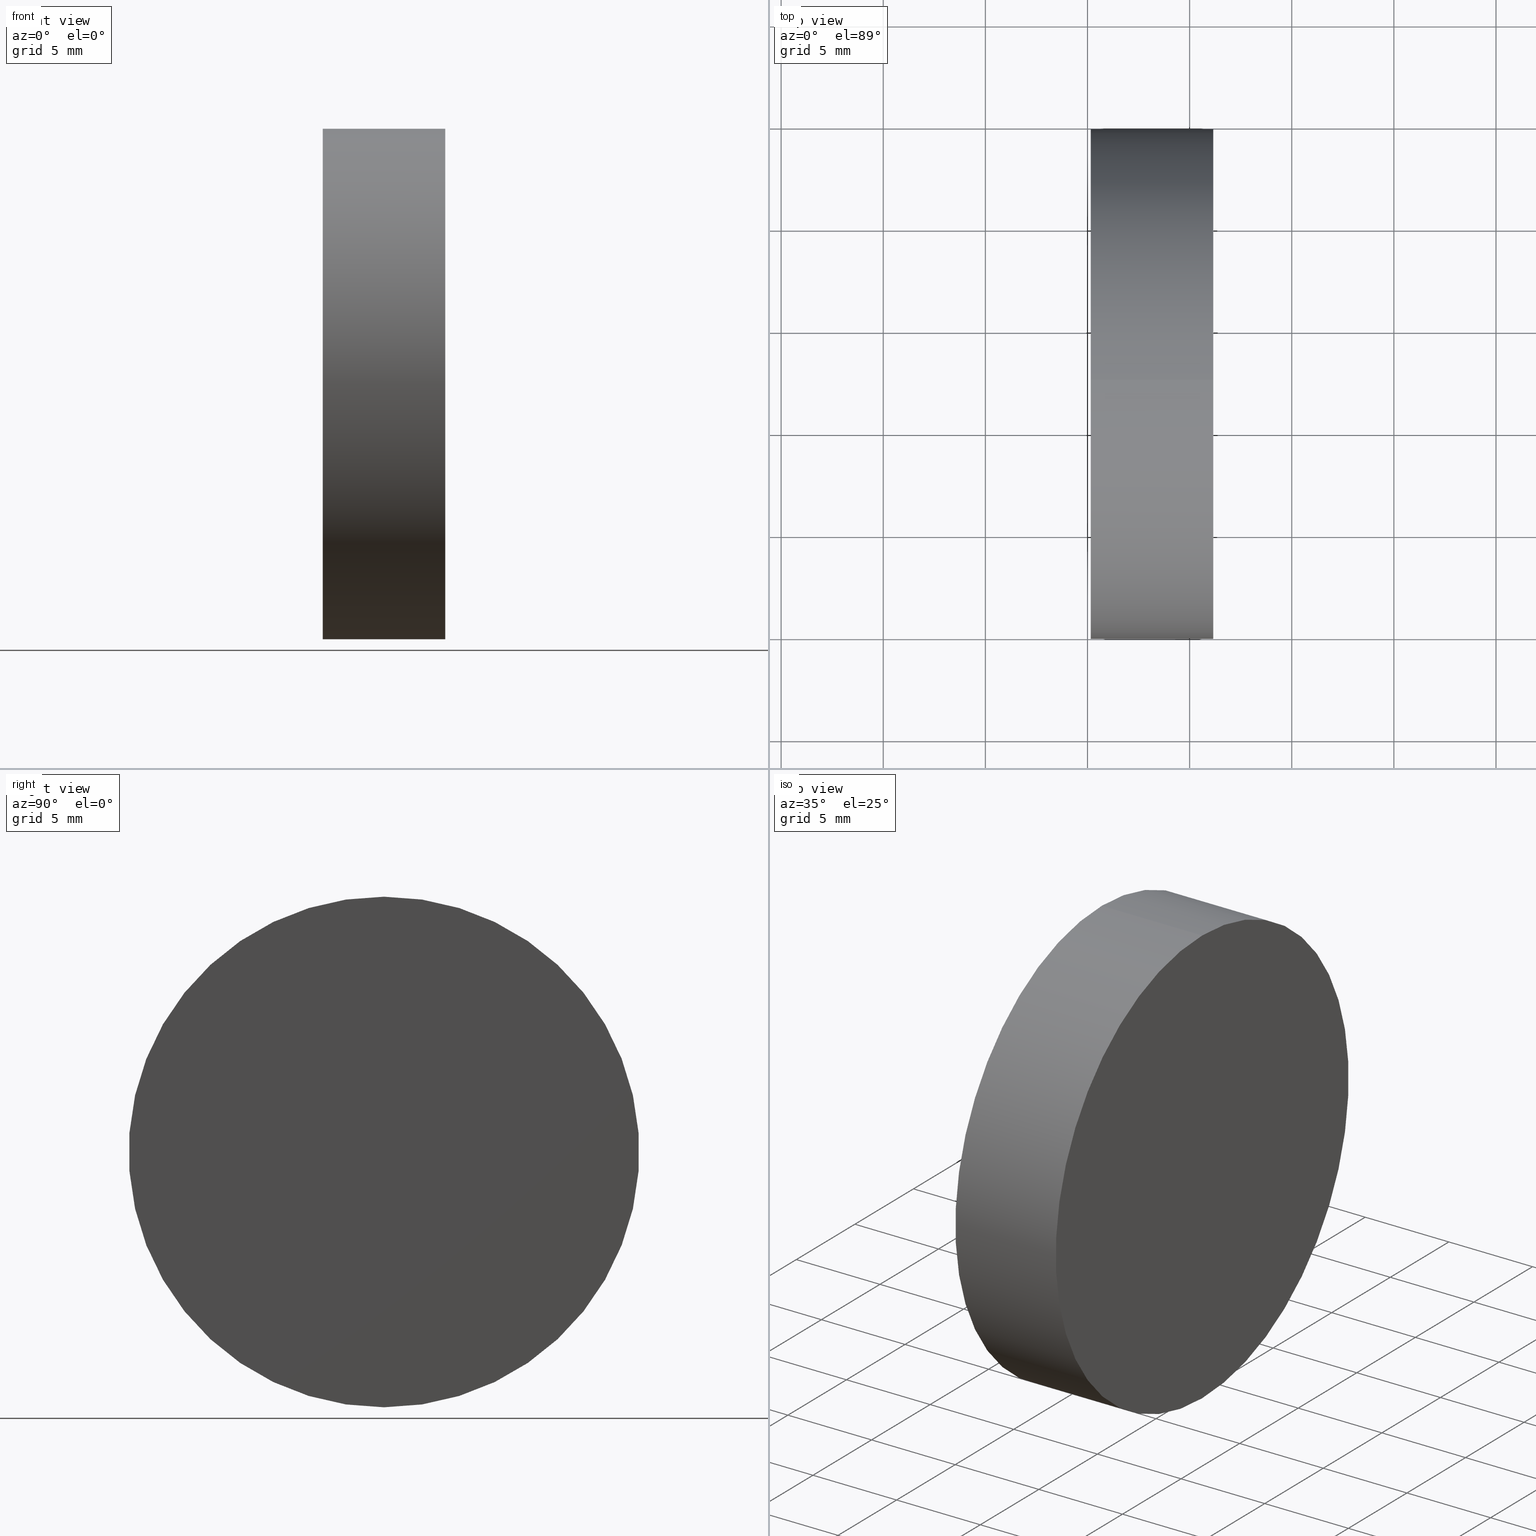
[diagram: canonical four-view strip — front | top / right | iso, engineering-drawing reading convention]
A machine part, canonical four-view strip (front | top / right | iso — engineering-drawing reading convention). The complete STEP part file that produces these views, byte-faithful:
ISO-10303-21;
HEADER;
FILE_DESCRIPTION (( 'STEP AP214' ),
    '1' );
FILE_NAME ('430008.STEP',
    '2019-08-22T02:33:22',
    ( '' ),
    ( '' ),
    'SwSTEP 2.0',
    'SolidWorks 2016',
    '' );
FILE_SCHEMA (( 'AUTOMOTIVE_DESIGN' ));
ENDSEC;

DATA;
#1 = FILL_AREA_STYLE_COLOUR ( '', #66 ) ;
#2 =( LENGTH_UNIT ( ) NAMED_UNIT ( * ) SI_UNIT ( .MILLI., .METRE. ) );
#3 = ORIENTED_EDGE ( 'NONE', *, *, #88, .F. ) ;
#4 = MANIFOLD_SOLID_BREP ( '��ת1', #119 ) ;
#5 = CARTESIAN_POINT ( 'NONE',  ( 254.0008019926160300, 77.29317934901541800, 12.49999999999998400 ) ) ;
#6 =( LENGTH_UNIT ( ) NAMED_UNIT ( * ) SI_UNIT ( .MILLI., .METRE. ) );
#7 =( NAMED_UNIT ( * ) SI_UNIT ( $, .STERADIAN. ) SOLID_ANGLE_UNIT ( ) );
#8 = FACE_OUTER_BOUND ( 'NONE', #67, .T. ) ;
#9 = CIRCLE ( 'NONE', #25, 12.49999999999998400 ) ;
#10 = AXIS2_PLACEMENT_3D ( 'NONE', #11, #46, #121 ) ;
#11 = CARTESIAN_POINT ( 'NONE',  ( 266.1571404925609800, 77.29317934901541800, 0.0000000000000000000 ) ) ;
#12 = VECTOR ( 'NONE', #97, 1000.000000000000000 ) ;
#13 = SURFACE_STYLE_FILL_AREA ( #89 ) ;
#14 = DIRECTION ( 'NONE',  ( -1.000000000000000000, -0.0000000000000000000, -0.0000000000000000000 ) ) ;
#15 = EDGE_LOOP ( 'NONE', ( #29, #31 ) ) ;
#16 = CARTESIAN_POINT ( 'NONE',  ( 266.1571404925609800, 77.29317934901541800, -12.49999999999998400 ) ) ;
#17 = CIRCLE ( 'NONE', #55, 12.49999999999998400 ) ;
#18 = ADVANCED_BREP_SHAPE_REPRESENTATION ( '430008', ( #4, #93 ), #101 ) ;
#19 =( GEOMETRIC_REPRESENTATION_CONTEXT ( 3 ) GLOBAL_UNCERTAINTY_ASSIGNED_CONTEXT ( ( #103 ) ) GLOBAL_UNIT_ASSIGNED_CONTEXT ( ( #138, #83, #24 ) ) REPRESENTATION_CONTEXT ( 'NONE', 'WORKASPACE' ) );
#20 = VERTEX_POINT ( 'NONE', #77 ) ;
#21 = DIRECTION ( 'NONE',  ( 0.0000000000000000000, 0.0000000000000000000, 1.000000000000000000 ) ) ;
#22 = EDGE_CURVE ( 'NONE', #124, #20, #131, .T. ) ;
#23 = ORIENTED_EDGE ( 'NONE', *, *, #75, .T. ) ;
#24 =( NAMED_UNIT ( * ) SI_UNIT ( $, .STERADIAN. ) SOLID_ANGLE_UNIT ( ) );
#25 = AXIS2_PLACEMENT_3D ( 'NONE', #71, #96, #33 ) ;
#26 = CARTESIAN_POINT ( 'NONE',  ( 254.0008019926160300, 77.29317934901541800, -12.49999999999998400 ) ) ;
#27 = CARTESIAN_POINT ( 'NONE',  ( 0.0000000000000000000, 0.0000000000000000000, 0.0000000000000000000 ) ) ;
#28 = DIRECTION ( 'NONE',  ( 0.0000000000000000000, 0.0000000000000000000, -1.000000000000000000 ) ) ;
#29 = ORIENTED_EDGE ( 'NONE', *, *, #41, .T. ) ;
#30 = SHAPE_DEFINITION_REPRESENTATION ( #120, #18 ) ;
#31 = ORIENTED_EDGE ( 'NONE', *, *, #45, .T. ) ;
#32 = AXIS2_PLACEMENT_3D ( 'NONE', #125, #61, #28 ) ;
#33 = DIRECTION ( 'NONE',  ( 0.0000000000000000000, 0.0000000000000000000, 1.000000000000000000 ) ) ;
#34 = CARTESIAN_POINT ( 'NONE',  ( 266.1571404925609800, 77.29317934901541800, 0.0000000000000000000 ) ) ;
#35 = SURFACE_STYLE_USAGE ( .BOTH. , #60 ) ;
#36 = STYLED_ITEM ( 'NONE', ( #85 ), #4 ) ;
#37 = VERTEX_POINT ( 'NONE', #95 ) ;
#38 = AXIS2_PLACEMENT_3D ( 'NONE', #115, #14, #49 ) ;
#39 = APPLICATION_CONTEXT ( 'automotive_design' ) ;
#40 = ADVANCED_FACE ( 'NONE', ( #74 ), #135, .F. ) ;
#41 = EDGE_CURVE ( 'NONE', #52, #37, #9, .T. ) ;
#42 = LINE ( 'NONE', #5, #92 ) ;
#43 = UNCERTAINTY_MEASURE_WITH_UNIT (LENGTH_MEASURE( 1.000000000000000100E-005 ), #2, 'distance_accuracy_value', 'NONE');
#44 = ORIENTED_EDGE ( 'NONE', *, *, #45, .F. ) ;
#45 = EDGE_CURVE ( 'NONE', #37, #52, #63, .T. ) ;
#46 = DIRECTION ( 'NONE',  ( -1.000000000000000000, -0.0000000000000000000, -0.0000000000000000000 ) ) ;
#47 = DIRECTION ( 'NONE',  ( -1.000000000000000000, 0.0000000000000000000, -0.0000000000000000000 ) ) ;
#48 = FACE_OUTER_BOUND ( 'NONE', #68, .T. ) ;
#49 = DIRECTION ( 'NONE',  ( 0.0000000000000000000, 0.0000000000000000000, 1.000000000000000000 ) ) ;
#50 = AXIS2_PLACEMENT_3D ( 'NONE', #56, #86, #21 ) ;
#51 = PLANE ( 'NONE',  #32 ) ;
#52 = VERTEX_POINT ( 'NONE', #78 ) ;
#53 = MECHANICAL_DESIGN_GEOMETRIC_PRESENTATION_REPRESENTATION (  '', ( #36 ), #62 ) ;
#54 = ORIENTED_EDGE ( 'NONE', *, *, #75, .F. ) ;
#55 = AXIS2_PLACEMENT_3D ( 'NONE', #34, #59, #114 ) ;
#56 = CARTESIAN_POINT ( 'NONE',  ( 260.1571404925609800, 77.29317934901541800, 0.0000000000000000000 ) ) ;
#57 = LINE ( 'NONE', #26, #12 ) ;
#58 = FILL_AREA_STYLE ('',( #1 ) ) ;
#59 = DIRECTION ( 'NONE',  ( -1.000000000000000000, -0.0000000000000000000, -0.0000000000000000000 ) ) ;
#60 = SURFACE_SIDE_STYLE ('',( #13 ) ) ;
#61 = DIRECTION ( 'NONE',  ( 1.000000000000000000, 0.0000000000000000000, 0.0000000000000000000 ) ) ;
#62 =( GEOMETRIC_REPRESENTATION_CONTEXT ( 3 ) GLOBAL_UNCERTAINTY_ASSIGNED_CONTEXT ( ( #43 ) ) GLOBAL_UNIT_ASSIGNED_CONTEXT ( ( #2, #136, #106 ) ) REPRESENTATION_CONTEXT ( 'NONE', 'WORKASPACE' ) );
#63 = CIRCLE ( 'NONE', #50, 12.49999999999998400 ) ;
#64 = ADVANCED_FACE ( 'NONE', ( #48 ), #79, .T. ) ;
#65 = FACE_OUTER_BOUND ( 'NONE', #15, .T. ) ;
#66 = COLOUR_RGB ( '',1.000000000000000000, 1.000000000000000000, 1.000000000000000000 ) ;
#67 = EDGE_LOOP ( 'NONE', ( #23, #126, #132, #129 ) ) ;
#68 = EDGE_LOOP ( 'NONE', ( #3, #94, #91, #44 ) ) ;
#69 = STYLED_ITEM ( 'NONE', ( #130 ), #18 ) ;
#70 = DIRECTION ( 'NONE',  ( -0.0000000000000000000, 0.0000000000000000000, 1.000000000000000000 ) ) ;
#71 = CARTESIAN_POINT ( 'NONE',  ( 260.1571404925609800, 77.29317934901541800, 0.0000000000000000000 ) ) ;
#72 = AXIS2_PLACEMENT_3D ( 'NONE', #111, #123, #133 ) ;
#73 = PRODUCT_DEFINITION ( 'δ֪', '', #107, #117 ) ;
#74 = FACE_OUTER_BOUND ( 'NONE', #102, .T. ) ;
#75 = EDGE_CURVE ( 'NONE', #20, #124, #17, .T. ) ;
#76 = MECHANICAL_DESIGN_GEOMETRIC_PRESENTATION_REPRESENTATION (  '', ( #69 ), #19 ) ;
#77 = CARTESIAN_POINT ( 'NONE',  ( 266.1571404925609800, 77.29317934901541800, 12.49999999999998400 ) ) ;
#78 = CARTESIAN_POINT ( 'NONE',  ( 260.1571404925609800, 77.29317934901541800, 12.49999999999998400 ) ) ;
#79 = CYLINDRICAL_SURFACE ( 'NONE', #72, 12.49999999999998400 ) ;
#80 = APPLICATION_CONTEXT ( 'automotive_design' ) ;
#81 = DIRECTION ( 'NONE',  ( 1.000000000000000000, 0.0000000000000000000, 0.0000000000000000000 ) ) ;
#82 = FILL_AREA_STYLE_COLOUR ( '', #112 ) ;
#83 =( NAMED_UNIT ( * ) PLANE_ANGLE_UNIT ( ) SI_UNIT ( $, .RADIAN. ) );
#84 = EDGE_CURVE ( 'NONE', #20, #52, #42, .T. ) ;
#85 = PRESENTATION_STYLE_ASSIGNMENT (( #87 ) ) ;
#86 = DIRECTION ( 'NONE',  ( -1.000000000000000000, -0.0000000000000000000, -0.0000000000000000000 ) ) ;
#87 = SURFACE_STYLE_USAGE ( .BOTH. , #108 ) ;
#88 = EDGE_CURVE ( 'NONE', #124, #37, #57, .T. ) ;
#89 = FILL_AREA_STYLE ('',( #82 ) ) ;
#90 = PRODUCT_CONTEXT ( 'NONE', #80, 'mechanical' ) ;
#91 = ORIENTED_EDGE ( 'NONE', *, *, #84, .T. ) ;
#92 = VECTOR ( 'NONE', #100, 1000.000000000000000 ) ;
#93 = AXIS2_PLACEMENT_3D ( 'NONE', #27, #98, #81 ) ;
#94 = ORIENTED_EDGE ( 'NONE', *, *, #22, .T. ) ;
#95 = CARTESIAN_POINT ( 'NONE',  ( 260.1571404925609800, 77.29317934901541800, -12.49999999999998400 ) ) ;
#96 = DIRECTION ( 'NONE',  ( -1.000000000000000000, -0.0000000000000000000, -0.0000000000000000000 ) ) ;
#97 = DIRECTION ( 'NONE',  ( -1.000000000000000000, -0.0000000000000000000, -0.0000000000000000000 ) ) ;
#98 = DIRECTION ( 'NONE',  ( 0.0000000000000000000, 0.0000000000000000000, 1.000000000000000000 ) ) ;
#99 =( NAMED_UNIT ( * ) PLANE_ANGLE_UNIT ( ) SI_UNIT ( $, .RADIAN. ) );
#100 = DIRECTION ( 'NONE',  ( -1.000000000000000000, -0.0000000000000000000, -0.0000000000000000000 ) ) ;
#101 =( GEOMETRIC_REPRESENTATION_CONTEXT ( 3 ) GLOBAL_UNCERTAINTY_ASSIGNED_CONTEXT ( ( #137 ) ) GLOBAL_UNIT_ASSIGNED_CONTEXT ( ( #6, #99, #7 ) ) REPRESENTATION_CONTEXT ( 'NONE', 'WORKASPACE' ) );
#102 = EDGE_LOOP ( 'NONE', ( #54, #139 ) ) ;
#103 = UNCERTAINTY_MEASURE_WITH_UNIT (LENGTH_MEASURE( 1.000000000000000100E-005 ), #138, 'distance_accuracy_value', 'NONE');
#104 = PRESENTATION_LAYER_ASSIGNMENT (  '', '', ( #36 ) ) ;
#105 = PRODUCT_RELATED_PRODUCT_CATEGORY ( 'part', '', ( #118 ) ) ;
#106 =( NAMED_UNIT ( * ) SI_UNIT ( $, .STERADIAN. ) SOLID_ANGLE_UNIT ( ) );
#107 = PRODUCT_DEFINITION_FORMATION_WITH_SPECIFIED_SOURCE ( '�κ�', '', #118, .NOT_KNOWN. ) ;
#108 = SURFACE_SIDE_STYLE ('',( #109 ) ) ;
#109 = SURFACE_STYLE_FILL_AREA ( #58 ) ;
#110 = CARTESIAN_POINT ( 'NONE',  ( 266.1571404925609800, 77.29317934901540400, 0.0000000000000000000 ) ) ;
#111 = CARTESIAN_POINT ( 'NONE',  ( 254.0008019926160300, 77.29317934901541800, 0.0000000000000000000 ) ) ;
#112 = COLOUR_RGB ( '',1.000000000000000000, 1.000000000000000000, 1.000000000000000000 ) ;
#113 = ADVANCED_FACE ( 'NONE', ( #8 ), #134, .T. ) ;
#114 = DIRECTION ( 'NONE',  ( 0.0000000000000000000, 0.0000000000000000000, 1.000000000000000000 ) ) ;
#115 = CARTESIAN_POINT ( 'NONE',  ( 254.0008019926160300, 77.29317934901541800, 0.0000000000000000000 ) ) ;
#116 = APPLICATION_PROTOCOL_DEFINITION ( 'draft international standard', 'automotive_design', 1998, #80 ) ;
#117 = PRODUCT_DEFINITION_CONTEXT ( 'detailed design', #39, 'design' ) ;
#118 = PRODUCT ( '430008', '430008', '', ( #90 ) ) ;
#119 = CLOSED_SHELL ( 'NONE', ( #113, #40, #64, #127 ) ) ;
#120 = PRODUCT_DEFINITION_SHAPE ( 'NONE', 'NONE',  #73 ) ;
#121 = DIRECTION ( 'NONE',  ( 0.0000000000000000000, 0.0000000000000000000, 1.000000000000000000 ) ) ;
#122 = AXIS2_PLACEMENT_3D ( 'NONE', #110, #47, #70 ) ;
#123 = DIRECTION ( 'NONE',  ( -1.000000000000000000, -0.0000000000000000000, -0.0000000000000000000 ) ) ;
#124 = VERTEX_POINT ( 'NONE', #16 ) ;
#125 = CARTESIAN_POINT ( 'NONE',  ( 260.1571404925609800, 77.29317934901540400, 0.0000000000000000000 ) ) ;
#126 = ORIENTED_EDGE ( 'NONE', *, *, #88, .T. ) ;
#127 = ADVANCED_FACE ( 'NONE', ( #65 ), #51, .F. ) ;
#128 = APPLICATION_PROTOCOL_DEFINITION ( 'draft international standard', 'automotive_design', 1998, #39 ) ;
#129 = ORIENTED_EDGE ( 'NONE', *, *, #84, .F. ) ;
#130 = PRESENTATION_STYLE_ASSIGNMENT (( #35 ) ) ;
#131 = CIRCLE ( 'NONE', #10, 12.49999999999998400 ) ;
#132 = ORIENTED_EDGE ( 'NONE', *, *, #41, .F. ) ;
#133 = DIRECTION ( 'NONE',  ( 0.0000000000000000000, 0.0000000000000000000, 1.000000000000000000 ) ) ;
#134 = CYLINDRICAL_SURFACE ( 'NONE', #38, 12.49999999999998400 ) ;
#135 = PLANE ( 'NONE',  #122 ) ;
#136 =( NAMED_UNIT ( * ) PLANE_ANGLE_UNIT ( ) SI_UNIT ( $, .RADIAN. ) );
#137 = UNCERTAINTY_MEASURE_WITH_UNIT (LENGTH_MEASURE( 1.000000000000000100E-005 ), #6, 'distance_accuracy_value', 'NONE');
#138 =( LENGTH_UNIT ( ) NAMED_UNIT ( * ) SI_UNIT ( .MILLI., .METRE. ) );
#139 = ORIENTED_EDGE ( 'NONE', *, *, #22, .F. ) ;
#140 = PRESENTATION_LAYER_ASSIGNMENT (  '', '', ( #69 ) ) ;
ENDSEC;
END-ISO-10303-21;
